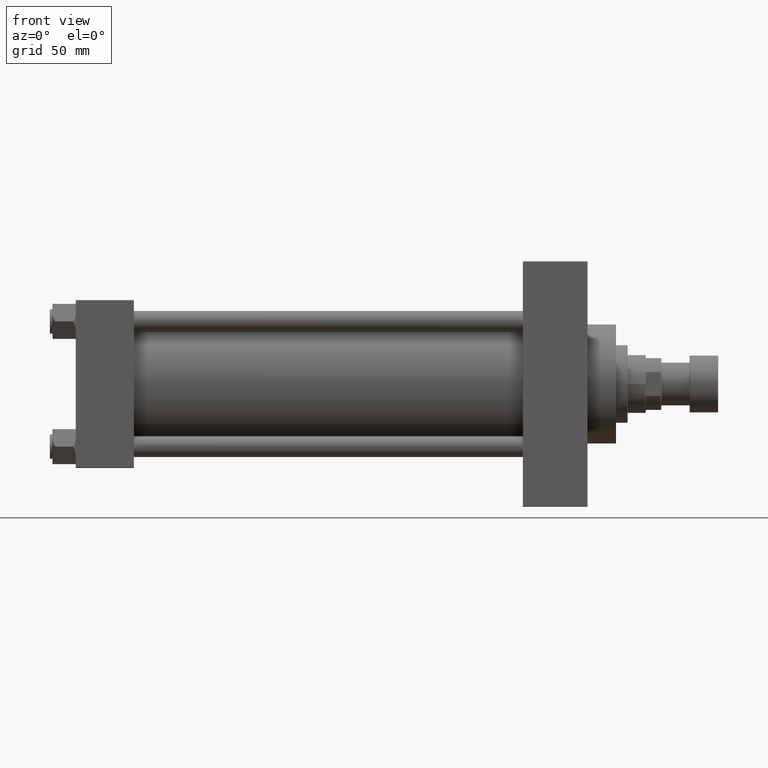
[diagram: clean part render]
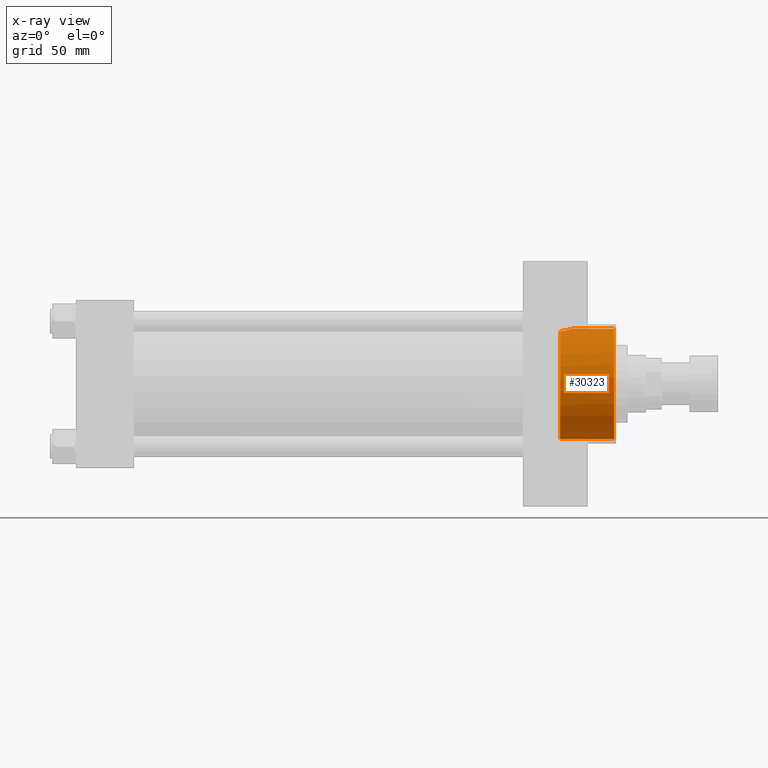
[diagram: x-ray — body ghosted, one internal face saturated and labeled with its STEP entity id]
A machine part, front view, then the same camera in x-ray: the body is ghosted and one INTERNAL B-rep face — a face not visible from any outside direction — is saturated and labeled: STEP entity #30323.
In plain terms, the highlighted cylindrical surface (partial cylindrical patch) has radius 42.75 mm, axis along (1, 0, 0).
Its self-contained STEP definition (entity closure, byte-faithful):
#1629 = CARTESIAN_POINT ( 'NONE',  ( 384.1041229325396671, -1.782171368608857165, 42.71427362908442404 ) ) ;
#1856 = CARTESIAN_POINT ( 'NONE',  ( 377.9822741085590110, -11.24766306689397233, 41.24590971077732604 ) ) ;
#3288 = CARTESIAN_POINT ( 'NONE',  ( 374.7399999999999523, 0.000000000000000000, 0.000000000000000000 ) ) ;
#4405 = VERTEX_POINT ( 'NONE', #7306 ) ;
#5302 = CARTESIAN_POINT ( 'NONE',  ( 383.7629584476919149, -3.518170577613233263, 42.61034067485236676 ) ) ;
#7306 = CARTESIAN_POINT ( 'NONE',  ( 416.5000000000000000, 5.235365066354935472E-15, 42.75000000000000000 ) ) ;
#7683 = DIRECTION ( 'NONE',  ( 0.000000000000000000, 0.000000000000000000, -1.000000000000000000 ) ) ;
#8146 = AXIS2_PLACEMENT_3D ( 'NONE', #3288, #18193, #7683 ) ;
#8488 = CARTESIAN_POINT ( 'NONE',  ( 384.2200000000002547, -0.3557163794469085372, 42.75000000000001421 ) ) ;
#9352 = CARTESIAN_POINT ( 'NONE',  ( 416.5000000000000000, 0.000000000000000000, 0.000000000000000000 ) ) ;
#9445 = EDGE_CURVE ( 'NONE', #46078, #32672, #11898, .T. ) ;
#11585 = FACE_OUTER_BOUND ( 'NONE', #27076, .T. ) ;
#11898 = B_SPLINE_CURVE_WITH_KNOTS ( 'NONE', 3,
 ( #16306, #8488, #41921, #42874, #1629, #23833, #5302, #16533, #24312, #27492, #31388, #12394, #16065, #35535, #31163, #38964, #38719, #1856, #12863, #30929, #23364, #13357 ),
 .UNSPECIFIED., .F., .F.,
 ( 4, 2, 2, 2, 2, 2, 2, 2, 2, 2, 4 ),
 ( 0.01702171439019720123, 0.01808348912762101218, 0.01914526386504482314, 0.02126881333989244505, 0.02233058807731628029, 0.02339236281474011553, 0.02551591228958786581, 0.02763946176443561609, 0.02976301123928336290, 0.03188656071413111665, 0.03401011018897886345 ),
 .UNSPECIFIED. ) ;
#12394 = CARTESIAN_POINT ( 'NONE',  ( 382.3763861193419871, -6.770732795594986086, 42.21512903942316086 ) ) ;
#12863 = CARTESIAN_POINT ( 'NONE',  ( 377.3650373963747597, -11.60846388096254600, 41.14496498017210513 ) ) ;
#13357 = CARTESIAN_POINT ( 'NONE',  ( 374.7399999999999523, -12.67993690836038212, 40.82623788692757216 ) ) ;
#13927 = EDGE_CURVE ( 'NONE', #4405, #23460, #32464, .T. ) ;
#14558 = DIRECTION ( 'NONE',  ( 1.000000000000000000, -0.000000000000000000, -0.000000000000000000 ) ) ;
#14934 = DIRECTION ( 'NONE',  ( 1.000000000000000000, -0.000000000000000000, -0.000000000000000000 ) ) ;
#15408 = CARTESIAN_POINT ( 'NONE',  ( 374.7399999999999523, 0.000000000000000000, -42.75000000000000000 ) ) ;
#15652 = LINE ( 'NONE', #15408, #30221 ) ;
#16065 = CARTESIAN_POINT ( 'NONE',  ( 382.0015928053662719, -7.364010740346978778, 42.11487085516266404 ) ) ;
#16306 = CARTESIAN_POINT ( 'NONE',  ( 384.2200000000000273, 5.235365066362919533E-15, 42.75000000000000000 ) ) ;
#16533 = CARTESIAN_POINT ( 'NONE',  ( 383.4260137807291926, -4.526382623994734011, 42.51103856060491637 ) ) ;
#17167 = DIRECTION ( 'NONE',  ( 1.000000000000000000, 0.000000000000000000, 0.000000000000000000 ) ) ;
#17825 = VECTOR ( 'NONE', #14558, 1000.000000000000000 ) ;
#18126 = CARTESIAN_POINT ( 'NONE',  ( 416.5000000000000000, 0.000000000000000000, -42.75000000000000000 ) ) ;
#18193 = DIRECTION ( 'NONE',  ( 1.000000000000000000, -0.000000000000000000, -0.000000000000000000 ) ) ;
#18957 = ORIENTED_EDGE ( 'NONE', *, *, #9445, .F. ) ;
#19103 = CARTESIAN_POINT ( 'NONE',  ( 374.7399999999999523, 0.000000000000000000, -42.75000000000000000 ) ) ;
#20583 = CIRCLE ( 'NONE', #26042, 42.75000000000000000 ) ;
#20666 = EDGE_CURVE ( 'NONE', #46078, #4405, #33076, .T. ) ;
#21505 = CARTESIAN_POINT ( 'NONE',  ( 374.7399999999999523, -12.67993690836038212, 40.82623788692757216 ) ) ;
#23364 = CARTESIAN_POINT ( 'NONE',  ( 375.4263400167577629, -12.47749807280258594, 40.88911195506442198 ) ) ;
#23460 = VERTEX_POINT ( 'NONE', #18126 ) ;
#23833 = CARTESIAN_POINT ( 'NONE',  ( 383.9325276923767660, -2.832175481623206093, 42.66183901135581635 ) ) ;
#24312 = CARTESIAN_POINT ( 'NONE',  ( 383.2993960643597120, -4.860054019011688986, 42.47412520213219267 ) ) ;
#25582 = ORIENTED_EDGE ( 'NONE', *, *, #13927, .T. ) ;
#26042 = AXIS2_PLACEMENT_3D ( 'NONE', #27388, #42049, #31763 ) ;
#27076 = EDGE_LOOP ( 'NONE', ( #18957, #43544, #25582, #34328, #48201 ) ) ;
#27388 = CARTESIAN_POINT ( 'NONE',  ( 374.7399999999999523, 0.000000000000000000, 0.000000000000000000 ) ) ;
#27492 = CARTESIAN_POINT ( 'NONE',  ( 383.0198534454124228, -5.515287097378180015, 42.39402133541481987 ) ) ;
#29703 = EDGE_CURVE ( 'NONE', #32672, #38704, #20583, .T. ) ;
#30221 = VECTOR ( 'NONE', #14934, 1000.000000000000000 ) ;
#30323 = ADVANCED_FACE ( 'NONE', ( #11585 ), #36727, .F. ) ;
#30929 = CARTESIAN_POINT ( 'NONE',  ( 376.0881855045062707, -12.22213168823644658, 40.96686556097022702 ) ) ;
#31163 = CARTESIAN_POINT ( 'NONE',  ( 380.6852196200358094, -9.025364359016291971, 41.78941323369598138 ) ) ;
#31388 = CARTESIAN_POINT ( 'NONE',  ( 382.8678695714942819, -5.834913689629351197, 42.35109966501106271 ) ) ;
#31763 = DIRECTION ( 'NONE',  ( 0.000000000000000000, 0.000000000000000000, -1.000000000000000000 ) ) ;
#32464 = CIRCLE ( 'NONE', #34802, 42.75000000000000000 ) ;
#32672 = VERTEX_POINT ( 'NONE', #21505 ) ;
#33076 = LINE ( 'NONE', #48001, #17825 ) ;
#34328 = ORIENTED_EDGE ( 'NONE', *, *, #40680, .F. ) ;
#34802 = AXIS2_PLACEMENT_3D ( 'NONE', #9352, #17167, #43262 ) ;
#35535 = CARTESIAN_POINT ( 'NONE',  ( 381.1575723231069901, -8.490431257591527725, 41.90230994099356110 ) ) ;
#36727 = CYLINDRICAL_SURFACE ( 'NONE', #8146, 42.75000000000000000 ) ;
#38704 = VERTEX_POINT ( 'NONE', #19103 ) ;
#38719 = CARTESIAN_POINT ( 'NONE',  ( 379.1351602650894392, -10.44419664956255112, 41.45664902860857381 ) ) ;
#38964 = CARTESIAN_POINT ( 'NONE',  ( 379.6754924569601712, -9.999825575006543232, 41.56700312386078622 ) ) ;
#40680 = EDGE_CURVE ( 'NONE', #38704, #23460, #15652, .T. ) ;
#41921 = CARTESIAN_POINT ( 'NONE',  ( 384.2055487969410024, -0.7143419376948682009, 42.74552439370961565 ) ) ;
#42049 = DIRECTION ( 'NONE',  ( 1.000000000000000000, 0.000000000000000000, 0.000000000000000000 ) ) ;
#42874 = CARTESIAN_POINT ( 'NONE',  ( 384.1474619350561852, -1.428652546488347719, 42.72761509841832606 ) ) ;
#43262 = DIRECTION ( 'NONE',  ( 0.000000000000000000, 0.000000000000000000, -1.000000000000000000 ) ) ;
#43544 = ORIENTED_EDGE ( 'NONE', *, *, #20666, .T. ) ;
#45402 = CARTESIAN_POINT ( 'NONE',  ( 384.2200000000000273, 5.235365066362919533E-15, 42.75000000000000000 ) ) ;
#46078 = VERTEX_POINT ( 'NONE', #45402 ) ;
#48001 = CARTESIAN_POINT ( 'NONE',  ( 374.7399999999999523, 5.235365066354935472E-15, 42.75000000000000000 ) ) ;
#48201 = ORIENTED_EDGE ( 'NONE', *, *, #29703, .F. ) ;